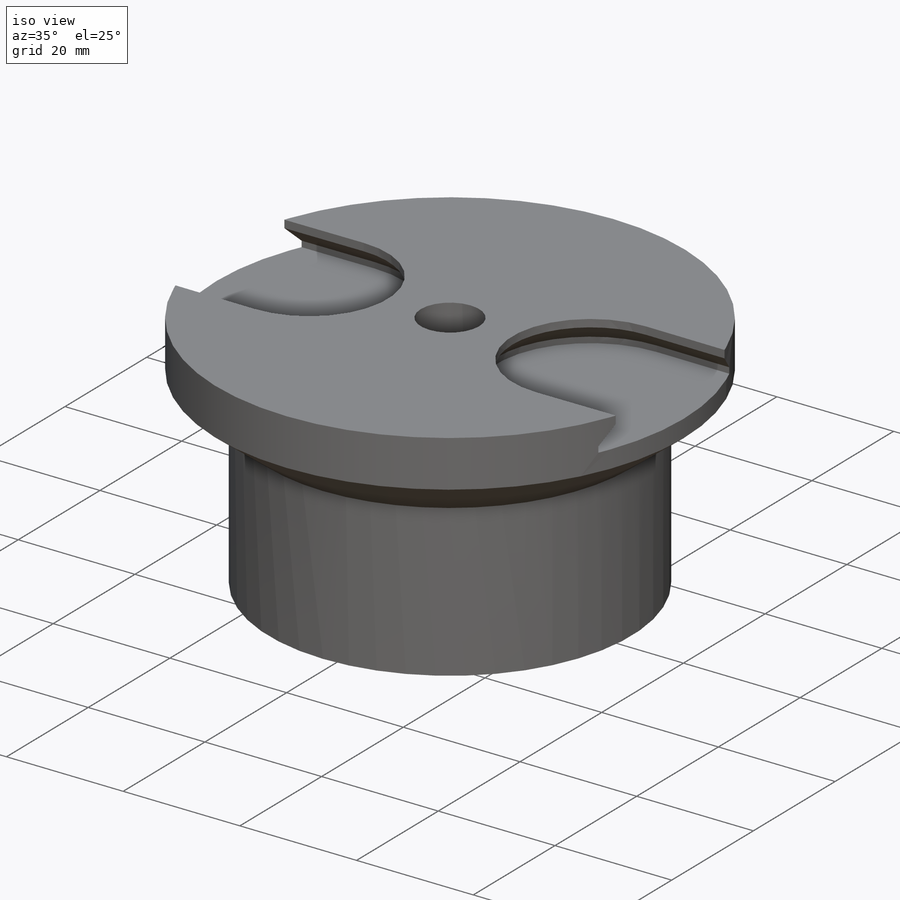
[diagram: iso view]
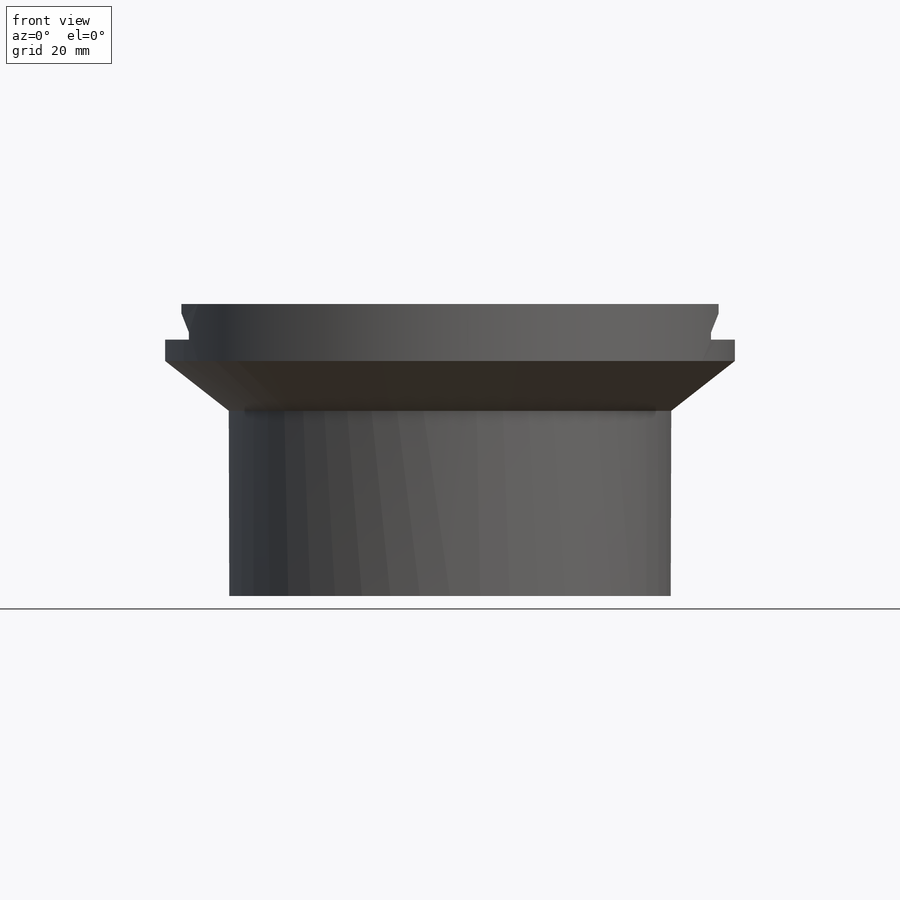
[diagram: front view]
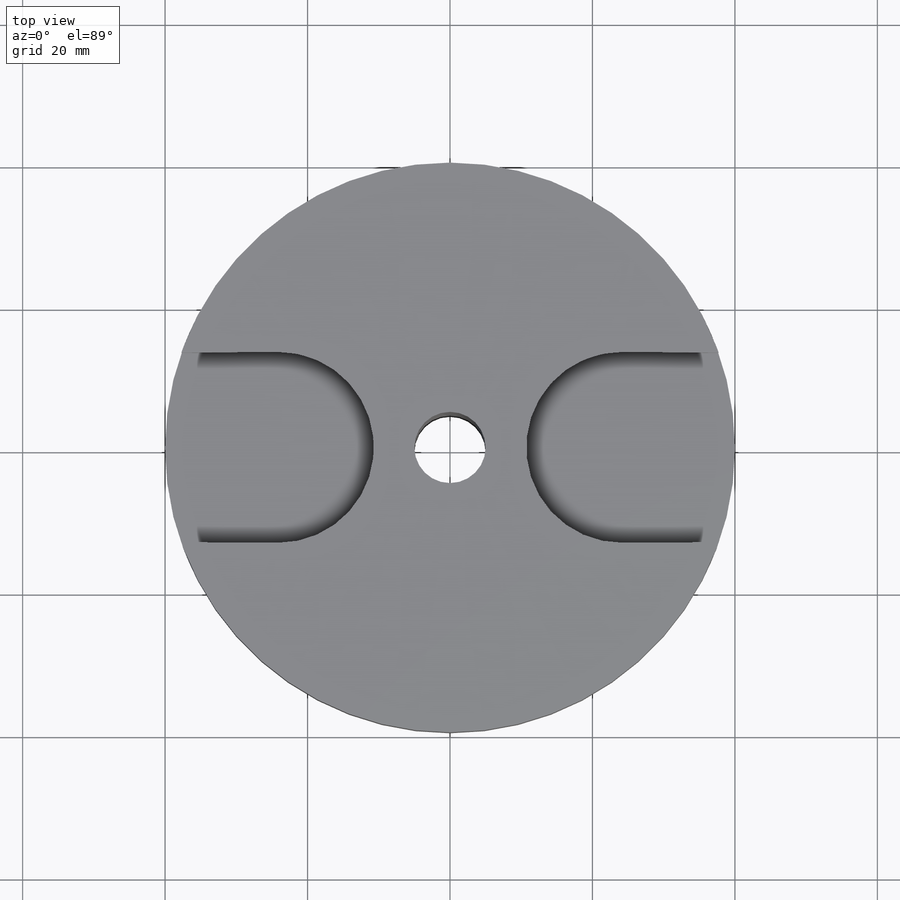
[diagram: top view]
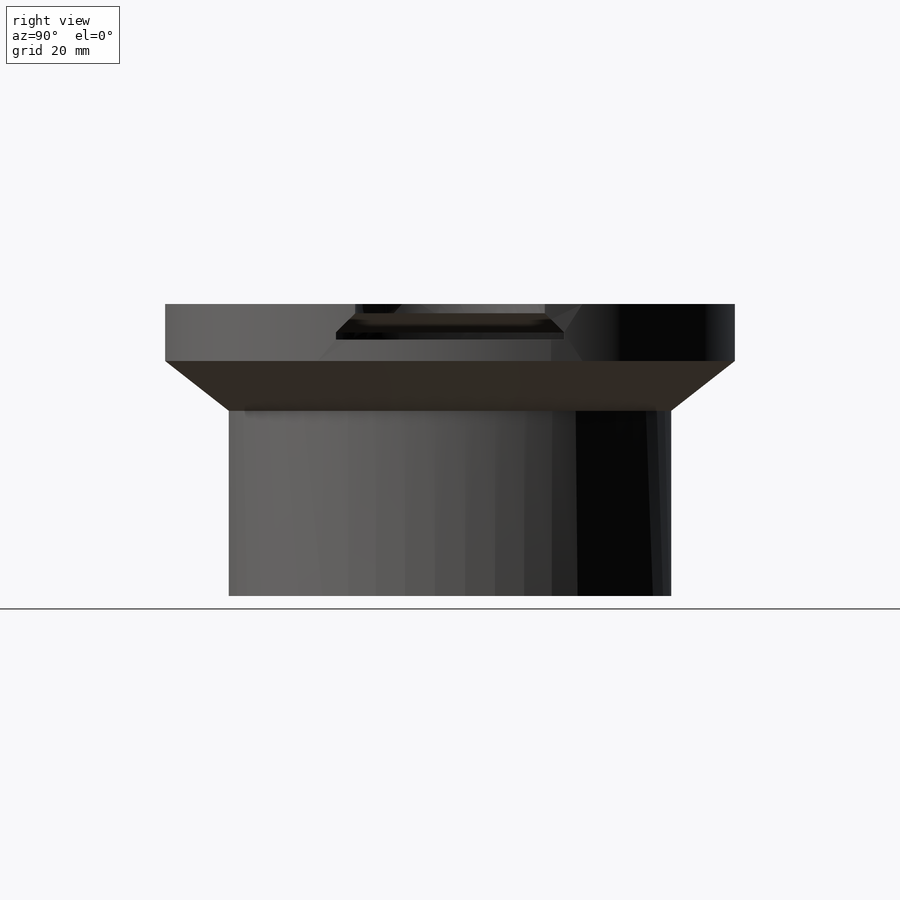
[diagram: right view]
SOLIDWORKS PART (.sldprt)
format: sldprt  version: not decoded by parser v0  size: 673,792 bytes
history: native  units: mm
features: sketch x20, cut_extrude x8, sweep x3, plane x3, extrude x2, material x1, helix x1, pattern_circular x1, cut_revolve x1, revolve x1 (+12 scaffold rows collapsed)
feature tree (53):
  scaffold x12  (default folders/planes/origin — collapsed)
  material  "Material <not specified>"
  sketch  "Sketch1"  dims[D1=62.12mm D2=10.0mm]
  extrude  "Boss-Extrude1"  Depth=35mm
  sketch  "Sketch18"  dims[c1.D1=~56.930665mm c1.D2=~19.717119mm c2.D1=2.4mm c2.D2=2.5mm]
  cut_extrude  "Cut-Extrude12"  Depth=13mm
  sketch  "Sketch19"
  helix  "Helix/Spiral1"  Pitch=12mm
  sketch  "Sketch20"  dims[c1.D1=1.0mm c1.D2=1.0mm c2.D2=~111.337071deg c3.D2=~1.797078mm c4.D2=60.0deg c4.D3=~0.972638mm c5.D3=120.0deg c6.D3=~0.878422mm c7.D3=30.0deg c7.D2=~0.874433mm c8.D2=29.0deg c8.D3=1.0mm]
  sweep  "Sweep2"
  pattern_circular  "CirPattern8"  Count=4 Angle=360deg
  sketch  "Sketch24"  dims[c1.D1=~6.222135mm c2.D1=45.0deg c2.D2=~10.757958mm]
  cut_revolve  "Cut-Revolve1"  Angle=360deg
  sketch  "Sketch25"
  sketch  "Sketch28"  dims[D1=0.0mm]
  cut_extrude  "Cut-Extrude14"  Depth=17mm
  sketch  "Sketch30"  dims[D1=0.0mm]
  extrude  "Boss-Extrude2"  Depth=8mm
  sketch  "Sketch31"  dims[c1.D1=~9.962283mm c1.D2=26.6mm c1.D3=14.0mm c1.D4=62.12mm c2.D3=0.0mm]
  cut_extrude  "Cut-Extrude16"  Depth=1mm
  sketch  "Sketch32"  dims[c1.D3=11.0mm c1.D4=24.0mm c1.D5=~8.200665mm c2.D3=24.1mm c2.D1=0.0mm c2.D2=0.0mm]
  cut_extrude  "Cut-Extrude17"  [1 undecoded]
  plane  "Plane2"
  sketch  "Sketch33"  dims[D1=0.0mm D2=40.0mm]
  sketch  "Sketch34"  dims[c1.D1=80.0mm c2.D1=90.0deg c3.D1=2.7mm c3.D2=3.0mm c4.D2=45.0deg]
  sweep  "Cut-Sweep1"
  sketch  "Sketch35"  dims[D1=0.0mm D2=0.0mm]
  cut_extrude  "Cut-Extrude19"  [1 undecoded]
  plane  "Plane3"
  sketch  "Sketch37"  dims[c1.D1=~2.689298mm c2.D1=45.0deg c2.D2=2.7mm]
  sweep  "Cut-Sweep2"
  sketch  "Sketch33<3>"
  sketch  "Sketch38"  dims[D1=0.0mm D2=0.0mm]
  cut_extrude  "Cut-Extrude20"  [1 undecoded]
  plane  "Plane4"  Offset=15mm
  sketch  "Sketch39"  dims[D1=~62.663128mm]
  sketch  "Sketch40"  dims[D1=8.94mm]
  revolve  "Revolve1"  Angle=360deg
  sketch  "Sketch41"  dims[D1=20.0mm]
  cut_extrude  "Cut-Extrude21"  Depth=10mm
  sketch  "Sketch42"  dims[D1=62.12mm]
  cut_extrude  "Cut-Extrude22"  Depth=2mm
decode coverage: 28 of 37 modeling features carry decoded parameters
note: ~ marks probable driven/reference dimensions
note: 3 parameter values undecoded
summary: no parameter record found for 3 features
note: suppression state not decoded; provenance and decode notes live in map.json
